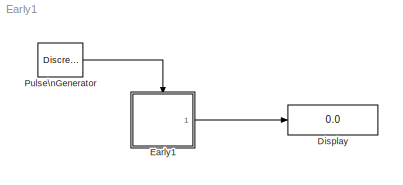
MODEL Early1
KIND model
CONFIG AbsTol = auto
CONFIG FixedStep = auto
CONFIG MaxStep = auto
CONFIG MinStep = auto
CONFIG RelTol = 1e-3
CONFIG Solver = FixedStepDiscrete
CONFIG SolverMode = Auto
CONFIG StartTime = 0.0
CONFIG StopTime = 10.0
BLOCK [Display] Display
  Decimation = 1
  Ports = [1]
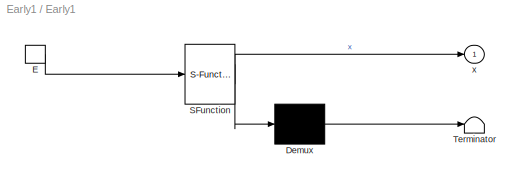
BLOCK [SubSystem] Early1
  MaskDescription = Stateflow diagram
  MaskDisplay = plot(sf('Private','sfblk','xIcon'),sf('Private','sfblk','yIcon'));text(0.5,0,sf('Private', 'sfblk', 'tIcon'),'HorizontalAl','Center','VerticalAl','Bottom');
  MaskIconFrame = off
  MaskIconOpaque = off
  MaskIconRotate = none
  MaskIconUnits = autoscale
  MaskSelfModifiable = on
  MaskType = Stateflow
  Ports = [0, 1, 0, 1]
  TreatAsAtomicUnit = off
BLOCK [Demux] Early1/ Demux 
  Outputs = 1
  Ports = [1, 1]
BLOCK [S-Function] Early1/ SFunction 
  FunctionName = sf_sfun
  PortCounts = [1 2]
  Ports = [1, 2]
  Tag = Stateflow S-Function Early1 1
BLOCK [Terminator] Early1/ Terminator 
BLOCK [TriggerPort] Early1/E
  Ports = [0, 1]
  ShowOutputPort = on
  TriggerType = either
BLOCK [Outport] Early1/x
BLOCK [DiscretePulseGenerator] Pulse\nGenerator
LINE Early1/ Demux :1 -> Early1/ Terminator :1
LINE Early1/ SFunction :1 -> Early1/ Demux :1
LINE Early1/ SFunction :2 -> Early1/x:1
LINE Early1/E:1 -> Early1/ SFunction :1
LINE Early1:1 -> Display:1
LINE Pulse\nGenerator:1 -> Early1:trigger
CHART Early1 states=4 transitions=4
  STATE_LABEL 'A'
  STATE_LABEL 'B/\\nx+=1000;'
  STATE_LABEL 'A1/\\nen: x=0;'
  STATE_LABEL 'A2/\\nen: x+=100;'
